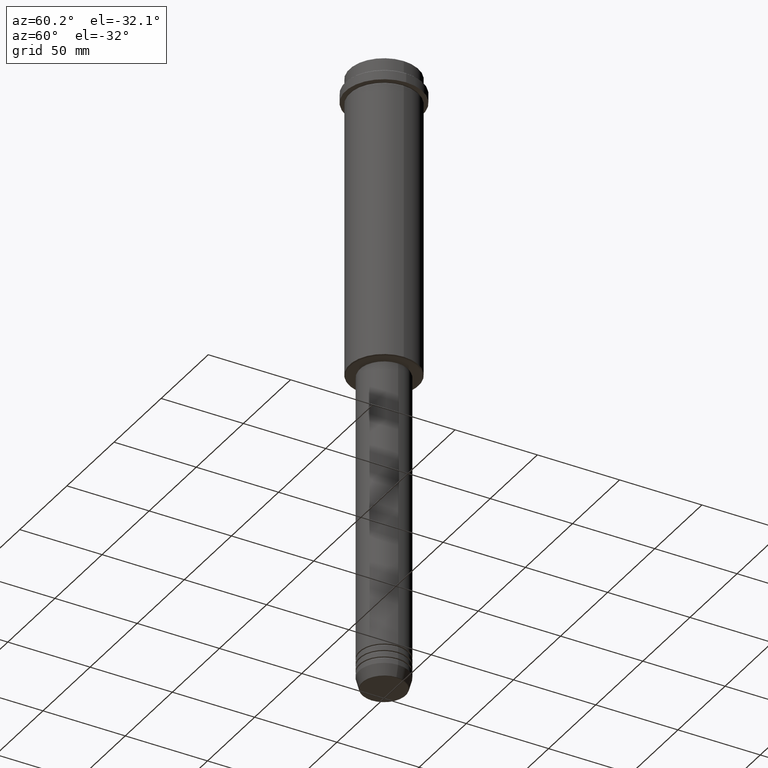
[diagram: clean part render]
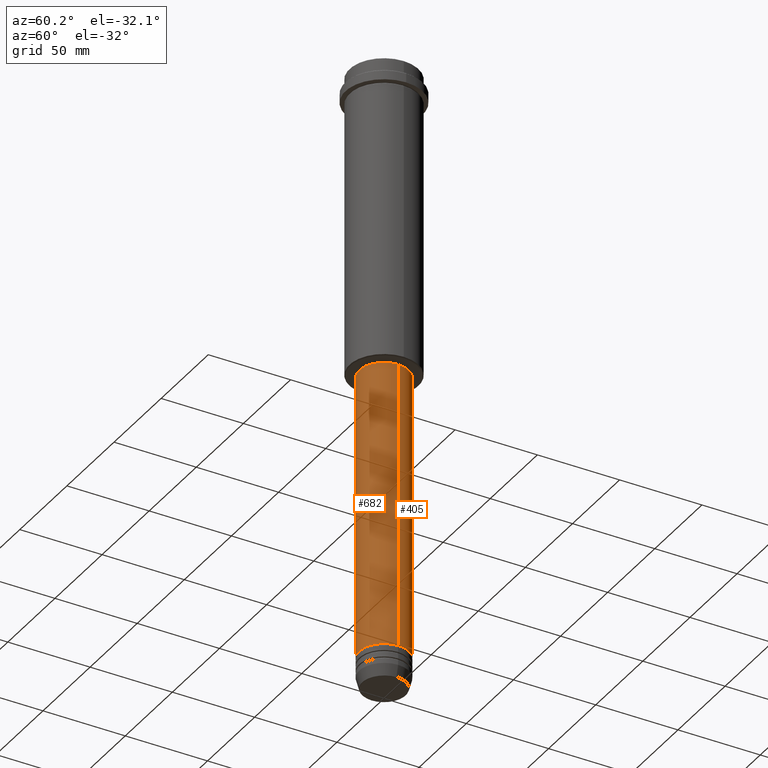
[diagram: same view with one multi-face feature highlighted, each face labeled with its STEP entity id]
A machine part, auxiliary view. The highlighted faces form ONE feature: a constant-radius fillet chain: 2 tangent blend faces with common blend radius 15 mm. The faces share edges in the B-rep.
Their STEP definitions:
[1] entity #405 (Cylinder):
#100 = CARTESIAN_POINT ( 'NONE',  ( 15.00000000000000000, 0.000000000000000000, -360.9999999999998863 ) ) ;
#115 = ORIENTED_EDGE ( 'NONE', *, *, #1370, .T. ) ;
#154 = DIRECTION ( 'NONE',  ( 1.000000000000000000, 0.000000000000000000, 0.000000000000000000 ) ) ;
#202 = EDGE_CURVE ( 'NONE', #636, #1374, #1312, .T. ) ;
#224 = ORIENTED_EDGE ( 'NONE', *, *, #202, .T. ) ;
#270 = CARTESIAN_POINT ( 'NONE',  ( 15.00000000000000000, 0.000000000000000000, 0.000000000000000000 ) ) ;
#331 = VECTOR ( 'NONE', #1214, 1000.000000000000000 ) ;
#347 = DIRECTION ( 'NONE',  ( 1.000000000000000000, 0.000000000000000000, 0.000000000000000000 ) ) ;
#405 = ADVANCED_FACE ( 'NONE', ( #1365 ), #495, .T. ) ;
#448 = VECTOR ( 'NONE', #699, 1000.000000000000000 ) ;
#453 = ORIENTED_EDGE ( 'NONE', *, *, #597, .F. ) ;
#484 = DIRECTION ( 'NONE',  ( -0.000000000000000000, -0.000000000000000000, 1.000000000000000000 ) ) ;
#495 = CYLINDRICAL_SURFACE ( 'NONE', #542, 15.00000000000000000 ) ;
#501 = CARTESIAN_POINT ( 'NONE',  ( 0.000000000000000000, 0.000000000000000000, -360.9999999999998863 ) ) ;
#542 = AXIS2_PLACEMENT_3D ( 'NONE', #815, #596, #729 ) ;
#596 = DIRECTION ( 'NONE',  ( -0.000000000000000000, -0.000000000000000000, 1.000000000000000000 ) ) ;
#597 = EDGE_CURVE ( 'NONE', #1278, #1374, #1211, .T. ) ;
#636 = VERTEX_POINT ( 'NONE', #833 ) ;
#651 = EDGE_LOOP ( 'NONE', ( #115, #224, #453, #1393 ) ) ;
#652 = CARTESIAN_POINT ( 'NONE',  ( 15.00000000000000000, 0.000000000000000000, -185.9999999999999147 ) ) ;
#679 = CIRCLE ( 'NONE', #776, 15.00000000000000000 ) ;
#699 = DIRECTION ( 'NONE',  ( -0.000000000000000000, -0.000000000000000000, 1.000000000000000000 ) ) ;
#729 = DIRECTION ( 'NONE',  ( 1.000000000000000000, 0.000000000000000000, 0.000000000000000000 ) ) ;
#757 = VERTEX_POINT ( 'NONE', #100 ) ;
#776 = AXIS2_PLACEMENT_3D ( 'NONE', #501, #484, #154 ) ;
#815 = CARTESIAN_POINT ( 'NONE',  ( 0.000000000000000000, 0.000000000000000000, 0.000000000000000000 ) ) ;
#833 = CARTESIAN_POINT ( 'NONE',  ( -15.00000000000000000, 1.836970198721029589E-15, -360.9999999999998863 ) ) ;
#1007 = DIRECTION ( 'NONE',  ( -0.000000000000000000, -0.000000000000000000, 1.000000000000000000 ) ) ;
#1010 = CARTESIAN_POINT ( 'NONE',  ( -15.00000000000000000, 1.836970198721029589E-15, -185.9999999999999147 ) ) ;
#1206 = CARTESIAN_POINT ( 'NONE',  ( -15.00000000000000000, 1.836970198721029589E-15, 0.000000000000000000 ) ) ;
#1211 = CIRCLE ( 'NONE', #1404, 15.00000000000000000 ) ;
#1214 = DIRECTION ( 'NONE',  ( -0.000000000000000000, -0.000000000000000000, 1.000000000000000000 ) ) ;
#1228 = CARTESIAN_POINT ( 'NONE',  ( 0.000000000000000000, 0.000000000000000000, -185.9999999999999147 ) ) ;
#1255 = LINE ( 'NONE', #270, #448 ) ;
#1278 = VERTEX_POINT ( 'NONE', #652 ) ;
#1312 = LINE ( 'NONE', #1206, #331 ) ;
#1337 = EDGE_CURVE ( 'NONE', #757, #1278, #1255, .T. ) ;
#1365 = FACE_OUTER_BOUND ( 'NONE', #651, .T. ) ;
#1370 = EDGE_CURVE ( 'NONE', #757, #636, #679, .T. ) ;
#1374 = VERTEX_POINT ( 'NONE', #1010 ) ;
#1393 = ORIENTED_EDGE ( 'NONE', *, *, #1337, .F. ) ;
#1404 = AXIS2_PLACEMENT_3D ( 'NONE', #1228, #1007, #347 ) ;
[2] entity #682 (Cylinder):
#67 = ORIENTED_EDGE ( 'NONE', *, *, #1337, .T. ) ;
#100 = CARTESIAN_POINT ( 'NONE',  ( 15.00000000000000000, 0.000000000000000000, -360.9999999999998863 ) ) ;
#137 = DIRECTION ( 'NONE',  ( 1.000000000000000000, 0.000000000000000000, 0.000000000000000000 ) ) ;
#177 = ORIENTED_EDGE ( 'NONE', *, *, #1397, .T. ) ;
#202 = EDGE_CURVE ( 'NONE', #636, #1374, #1312, .T. ) ;
#206 = DIRECTION ( 'NONE',  ( -0.000000000000000000, -0.000000000000000000, 1.000000000000000000 ) ) ;
#270 = CARTESIAN_POINT ( 'NONE',  ( 15.00000000000000000, 0.000000000000000000, 0.000000000000000000 ) ) ;
#277 = CIRCLE ( 'NONE', #582, 15.00000000000000000 ) ;
#296 = AXIS2_PLACEMENT_3D ( 'NONE', #337, #1099, #137 ) ;
#331 = VECTOR ( 'NONE', #1214, 1000.000000000000000 ) ;
#337 = CARTESIAN_POINT ( 'NONE',  ( 0.000000000000000000, 0.000000000000000000, -360.9999999999998863 ) ) ;
#424 = EDGE_LOOP ( 'NONE', ( #846, #177, #67, #569 ) ) ;
#448 = VECTOR ( 'NONE', #699, 1000.000000000000000 ) ;
#514 = DIRECTION ( 'NONE',  ( 1.000000000000000000, 0.000000000000000000, 0.000000000000000000 ) ) ;
#569 = ORIENTED_EDGE ( 'NONE', *, *, #1306, .F. ) ;
#582 = AXIS2_PLACEMENT_3D ( 'NONE', #1203, #206, #1067 ) ;
#625 = DIRECTION ( 'NONE',  ( -0.000000000000000000, -0.000000000000000000, 1.000000000000000000 ) ) ;
#635 = FACE_OUTER_BOUND ( 'NONE', #424, .T. ) ;
#636 = VERTEX_POINT ( 'NONE', #833 ) ;
#646 = CYLINDRICAL_SURFACE ( 'NONE', #1060, 15.00000000000000000 ) ;
#652 = CARTESIAN_POINT ( 'NONE',  ( 15.00000000000000000, 0.000000000000000000, -185.9999999999999147 ) ) ;
#682 = ADVANCED_FACE ( 'NONE', ( #635 ), #646, .T. ) ;
#699 = DIRECTION ( 'NONE',  ( -0.000000000000000000, -0.000000000000000000, 1.000000000000000000 ) ) ;
#757 = VERTEX_POINT ( 'NONE', #100 ) ;
#833 = CARTESIAN_POINT ( 'NONE',  ( -15.00000000000000000, 1.836970198721029589E-15, -360.9999999999998863 ) ) ;
#846 = ORIENTED_EDGE ( 'NONE', *, *, #202, .F. ) ;
#859 = CARTESIAN_POINT ( 'NONE',  ( 0.000000000000000000, 0.000000000000000000, 0.000000000000000000 ) ) ;
#907 = CIRCLE ( 'NONE', #296, 15.00000000000000000 ) ;
#1010 = CARTESIAN_POINT ( 'NONE',  ( -15.00000000000000000, 1.836970198721029589E-15, -185.9999999999999147 ) ) ;
#1060 = AXIS2_PLACEMENT_3D ( 'NONE', #859, #625, #514 ) ;
#1067 = DIRECTION ( 'NONE',  ( 1.000000000000000000, 0.000000000000000000, 0.000000000000000000 ) ) ;
#1099 = DIRECTION ( 'NONE',  ( -0.000000000000000000, -0.000000000000000000, 1.000000000000000000 ) ) ;
#1203 = CARTESIAN_POINT ( 'NONE',  ( 0.000000000000000000, 0.000000000000000000, -185.9999999999999147 ) ) ;
#1206 = CARTESIAN_POINT ( 'NONE',  ( -15.00000000000000000, 1.836970198721029589E-15, 0.000000000000000000 ) ) ;
#1214 = DIRECTION ( 'NONE',  ( -0.000000000000000000, -0.000000000000000000, 1.000000000000000000 ) ) ;
#1255 = LINE ( 'NONE', #270, #448 ) ;
#1278 = VERTEX_POINT ( 'NONE', #652 ) ;
#1306 = EDGE_CURVE ( 'NONE', #1374, #1278, #277, .T. ) ;
#1312 = LINE ( 'NONE', #1206, #331 ) ;
#1337 = EDGE_CURVE ( 'NONE', #757, #1278, #1255, .T. ) ;
#1374 = VERTEX_POINT ( 'NONE', #1010 ) ;
#1397 = EDGE_CURVE ( 'NONE', #636, #757, #907, .T. ) ;